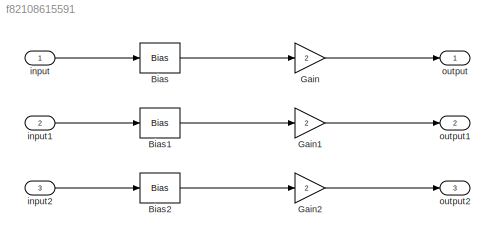
MODEL slx_f82108615591
KIND model
CONFIG AbsTol = auto
CONFIG EnableMultiTasking = on
CONFIG FixedStep = 0.1
CONFIG MaxStep = auto
CONFIG MinStep = auto
CONFIG RelTol = 1e-3
CONFIG SampleTimeConstraint = Unconstrained
CONFIG SolverName = FixedStepDiscrete
CONFIG StartTime = 0.0
CONFIG StopTime = 10
BLOCK [Bias] Bias
  Bias = 2
  SaturateOnIntegerOverflow = off
BLOCK [Bias] Bias1
  Bias = 2
  SaturateOnIntegerOverflow = off
BLOCK [Bias] Bias2
  Bias = 2
  SaturateOnIntegerOverflow = off
BLOCK [Gain] Gain
  Gain = 2
  OutDataTypeStr = Inherit: Same as input
  ParamDataTypeStr = Inherit: Same as input
BLOCK [Gain] Gain1
  Gain = 2
  OutDataTypeStr = Inherit: Same as input
  ParamDataTypeStr = Inherit: Same as input
BLOCK [Gain] Gain2
  Gain = 2
  OutDataTypeStr = Inherit: Same as input
  ParamDataTypeStr = Inherit: Same as input
BLOCK [Inport] input
  OutDataTypeStr = uint8
  PortDimensions = 1
  SamplingMode = Sample based
  SignalType = real
BLOCK [Inport] input1
  OutDataTypeStr = int32
  Port = 2
  PortDimensions = 2
  SamplingMode = Sample based
  SignalType = real
BLOCK [Inport] input2
  OutDataTypeStr = double
  Port = 3
  PortDimensions = 1
  SamplingMode = Sample based
  SignalType = real
BLOCK [Outport] output
  SamplingMode = Sample based
  SignalType = real
BLOCK [Outport] output1
  Port = 2
  SamplingMode = Sample based
  SignalType = real
BLOCK [Outport] output2
  Port = 3
  SamplingMode = Sample based
  SignalType = real
LINE Bias1:1 -> Gain1:1
LINE Bias2:1 -> Gain2:1
LINE Bias:1 -> Gain:1
LINE Gain1:1 -> output1:1
LINE Gain2:1 -> output2:1
LINE Gain:1 -> output:1
LINE input1:1 -> Bias1:1
LINE input2:1 -> Bias2:1
LINE input:1 -> Bias:1
